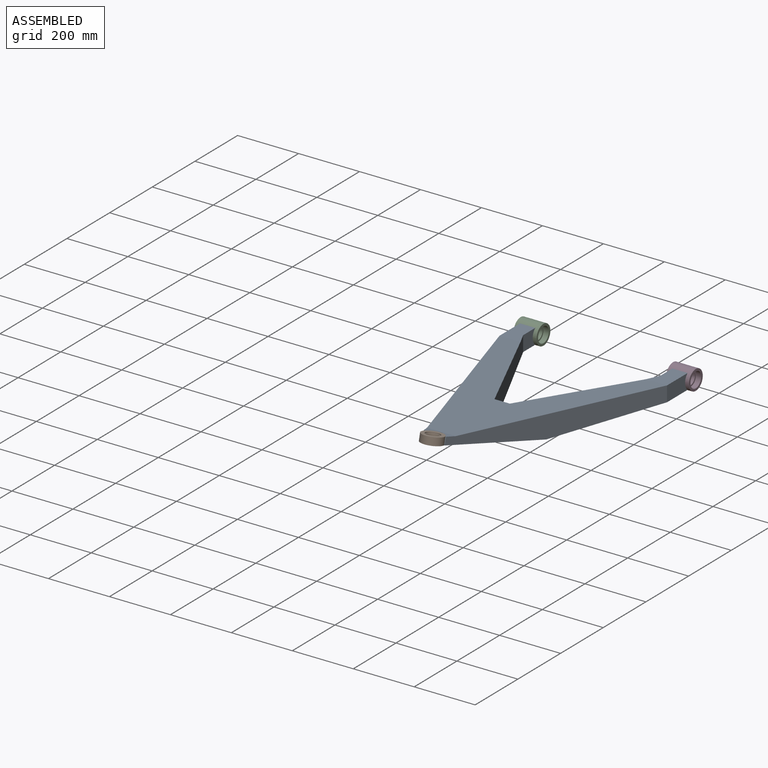
[diagram: assembled view]
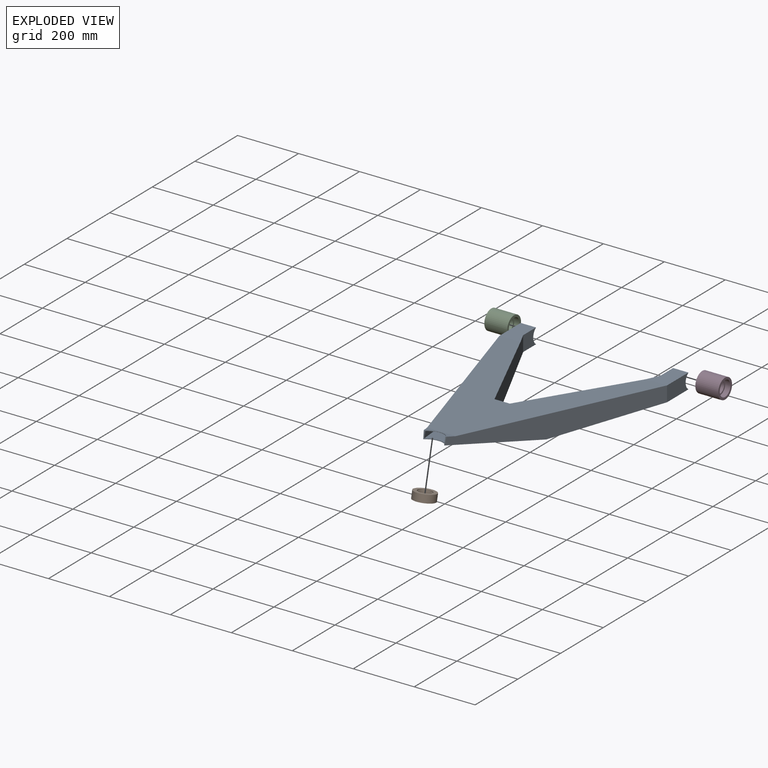
[diagram: exploded view]
GUIDED TOUR — MATED ASSEMBLY (Onshape document 5b496e9165261a41c8ff8666, AutoMate assembly 5b496e9165261a41c8ff8666_2adab7daae4539286cc4ed12_07d8897e8135ba86f213bf9e_default)

This assembly has 4 components, labeled P0..P3 below (a component is one placed occurrence of a part; the same part can appear more than once), held together by 3 mates. A mate is a constraint between two components; its type names the relative motion it leaves free:
  FASTENED — locks the two components together rigidly (no relative motion).
Axis/direction vectors are unit vectors and 'through' points are millimeter coordinates, both in the assembly's world frame.

MATES
  1. FASTENED "Fastened 3": P0 <-> P1, direction (0.000, 0.228, 0.974) through (-230.06, -615.00, -161.22) mm
  2. FASTENED "Fastened 2": P0 <-> P2, direction (1.000, 0.000, 0.000) through (-480.06, 208.88, -225.67) mm
  3. FASTENED "Fastened 1": P0 <-> P3, direction (1.000, 0.000, 0.000) through (19.94, 208.88, -225.67) mm

ASSEMBLY ORDER
  1. P3 — the base component [order verified]
  2. P2 [order verified]
  3. P0 [order verified]
  4. P1 [order verified]
Order-tag legend:
  [order verified] — this step's position reverses a verified removal order: the component was checked to insert without passing through the ones already placed.

Of the 4 components, 4 carry the full construction recipe — the FeatureScript program that regenerates the part's solid from scratch; the rest are supplied as boundary geometry only.
Each toured component is shown spotlighted twice — in the assembled view, then in the exploded view, where a leader line traces a displaced component back to its assembled socket (saturated green if recipe-attached, orange if geometry-only; every other component desaturated gray) — followed by its recipe or geometry summary and the mates that hold it.
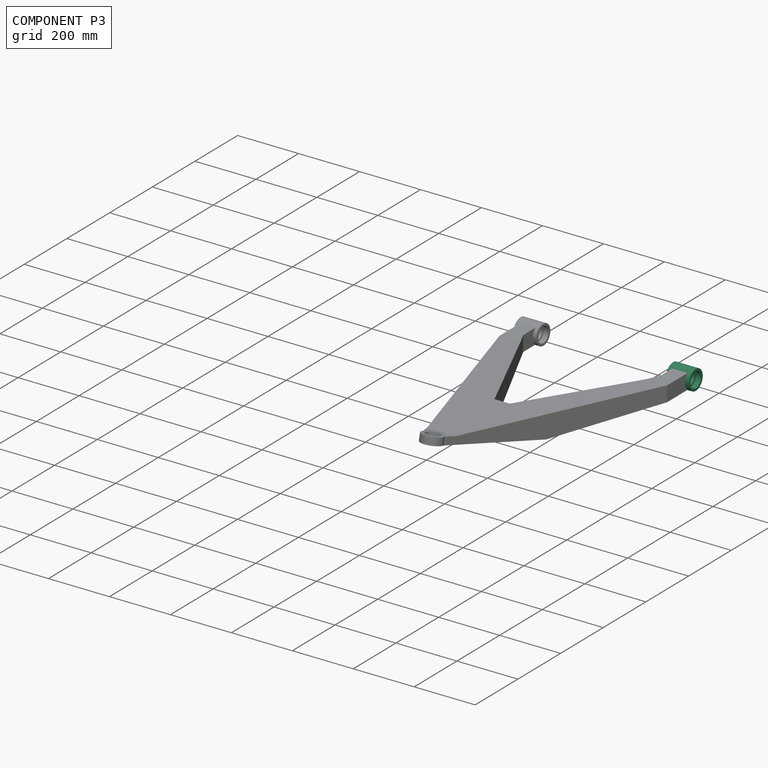
[diagram: component P3 — assembled]
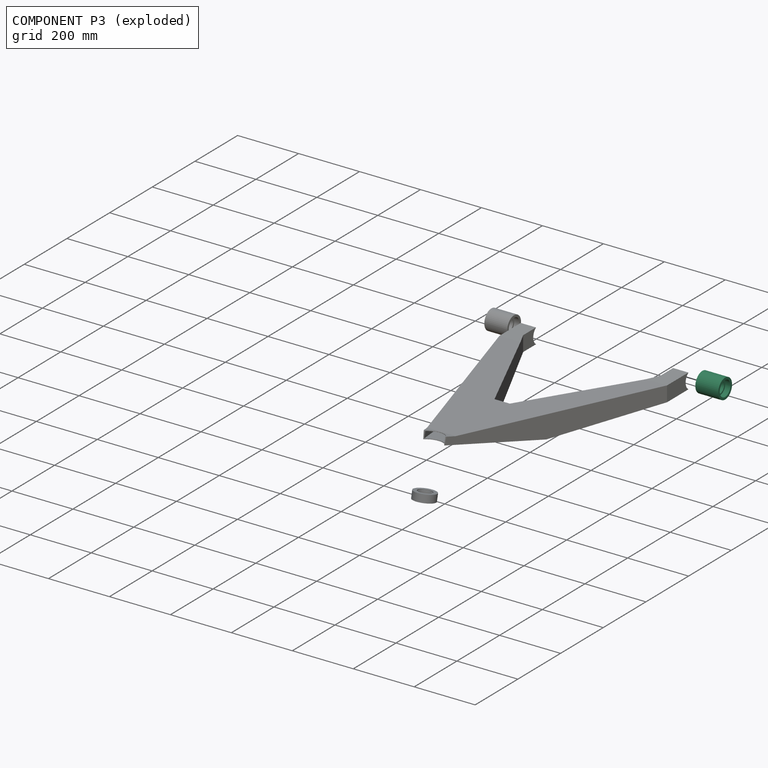
[diagram: component P3 — exploded]
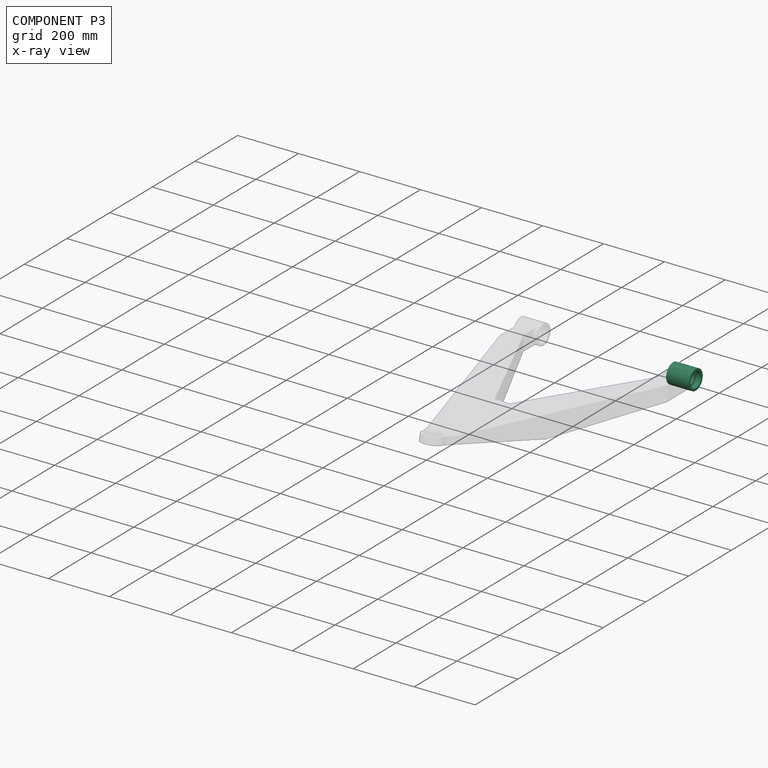
[diagram: component P3 — x-ray view]
COMPONENT P3 — same part as P2 (CADFS 00479923); its construction recipe is shown at P2.
Held by: FASTENED mate "Fastened 1" to P0.
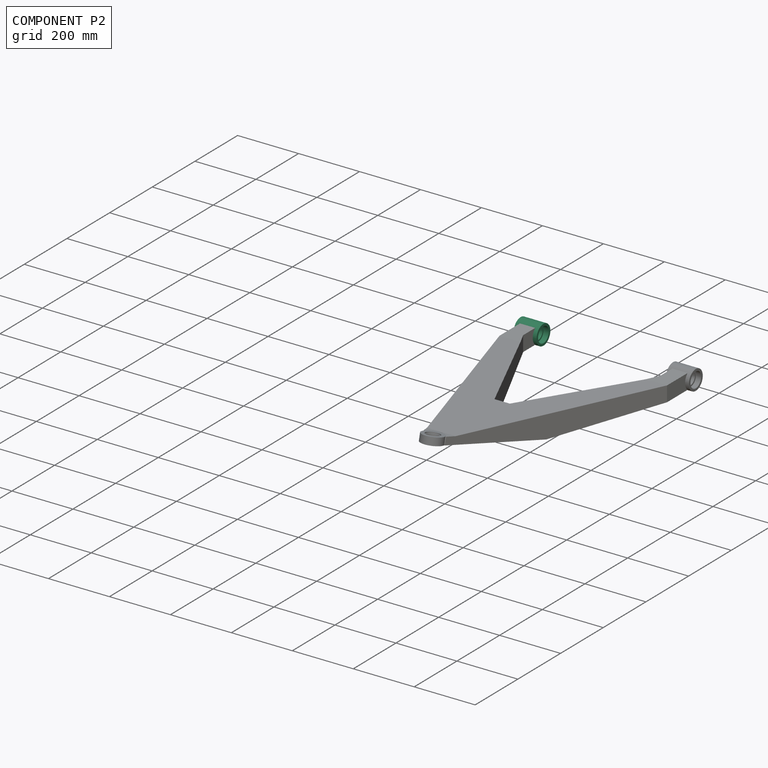
[diagram: component P2 — assembled]
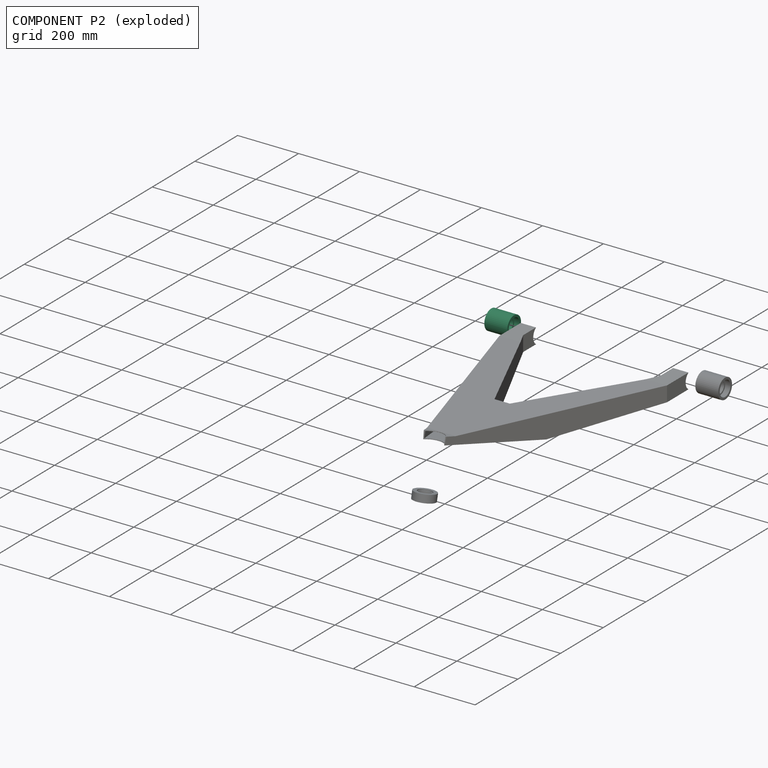
[diagram: component P2 — exploded]
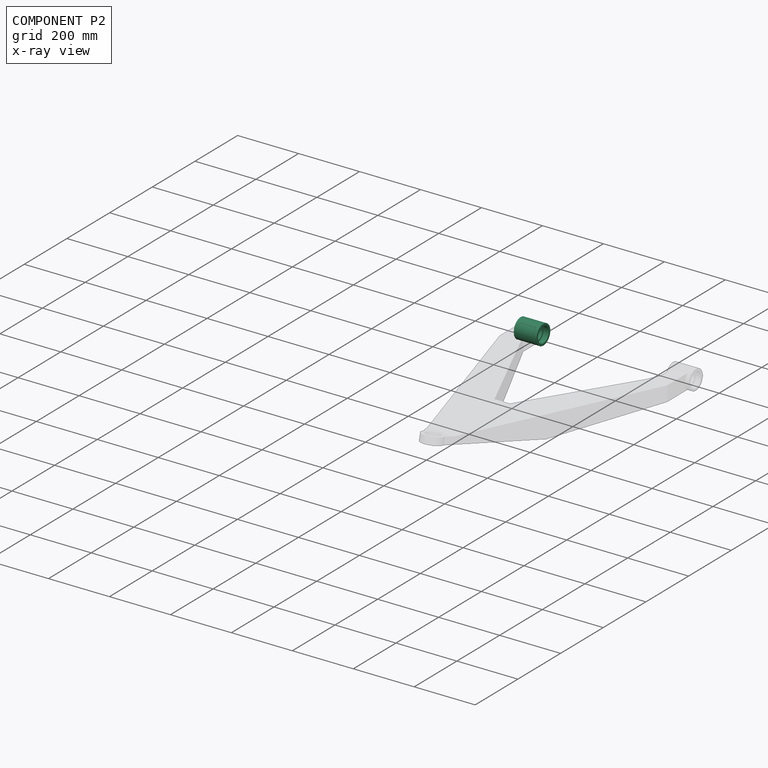
[diagram: component P2 — x-ray view]
COMPONENT P2 — recipe-attached (CADFS 00479923, mesh-verified: the recipe's output STEP matches this component's geometry to below the mesh-comparison resolution (tessellation chordal tolerance ~0.178 mm)).
Held by: FASTENED mate "Fastened 2" to P0.
Construction recipe (FeatureScript — the CAD program that rebuilds this solid; sketch coordinates are in the units given by the * unit suffixes, e.g. mm):

FeatureScript 1511;
import(path : "onshape/std/geometry.fs", version : "1511.0");
import(path : "onshape/std/common.fs", version : "1511.0");
const mm = millimeter;
const VERTEX = EntityType.VERTEX;
const EDGE = EntityType.EDGE;
const FACE = EntityType.FACE;
const BODY = EntityType.BODY;
function v(x, y){return vector(x, y);}
function OD(order){return orderDisambiguation(order);}
function OSD(set){return originalSetDisambiguation(set);}
function TD(topology){return topologyDisambiguation(topology);}
function TDD(query){return trueDependencyDisambiguation(query);}
function sQuery(a, b, c) {return sketchEntityQuery(a, b, c);}

annotation { "Feature Type Name" : "Feature", "Feature Type Description" : "" }
export const myFeature = defineFeature(function(context is Context, id is Id, definition is map)
    precondition{}
    {
        {
            var Q0;
            Q0=qCreatedBy(makeId("Right.planeOp"),FACE);
            var sketch = newSketch(context, id + "F0", { "sketchPlane" : qUnion([Q0])});
            skCircle(sketch, "E0", {"center": v(0, 0) * mm, "radius": 32.5 * mm});
            skCircle(sketch, "E1", {"center": v(0, 0) * mm, "radius": 20 * mm});
            skSolve(sketch);
        }
        {
            var Q0;
            Q0=makeQuery(id+"F0.imprint","IMPRINT",FACE,{"disambiguationData":[TD([[makeQuery(id+"F0.imprint","IMPRINT",EDGE,{"derivedFrom":sQuery(id+"F0.wireOp",EDGE,"E0")}),1.0]])]});
            extrude(context, id + "F1", {"entities" : qUnion([Q0]), "endBound" : BoundingType.SYMMETRIC, "depth" : 75 * mm});
        }
        {
            var Q0;
            Q0=makeQuery(id+"F1.opExtrude","CAP_FACE",FACE,{"disambiguationData":[OSD([sQuery(id+"F0.wireOp",EDGE,"E0"),sQuery(id+"F0.wireOp",EDGE,"E1")])],"isStart":false});
            var sketch = newSketch(context, id + "F2", { "sketchPlane" : qUnion([Q0])});
            skCircle(sketch, "E2.0", {"center": v(0, 0) * mm, "radius": 25 * mm});
            skSolve(sketch);
        }
        {
            var Q0;
            Q0=makeQuery(id+"F2.imprint","IMPRINT",FACE,{"disambiguationData":[TD([[makeQuery(id+"F2.imprint","IMPRINT",EDGE,{"derivedFrom":sQuery(id+"F2.wireOp",EDGE,"E2.0")}),1.0]])]});
            extrude(context, id + "F3", {"entities" : qUnion([Q0]), "operationType" : NewBodyOperationType.REMOVE, "oppositeDirection" : true, "depth" : 17 * mm});
        }
        {
            var Q0;
            Q0=makeQuery(id+"F1.opExtrude","CAP_FACE",FACE,{"disambiguationData":[OSD([sQuery(id+"F0.wireOp",EDGE,"E0"),sQuery(id+"F0.wireOp",EDGE,"E1")])],"isStart":true});
            var sketch = newSketch(context, id + "F4", { "sketchPlane" : qUnion([Q0])});
            skCircle(sketch, "E3.0", {"center": v(0, 0) * mm, "radius": 25 * mm});
            skSolve(sketch);
        }
        {
            var Q0;
            Q0=makeQuery(id+"F4.imprint","IMPRINT",FACE,{"disambiguationData":[TD([[makeQuery(id+"F4.imprint","IMPRINT",EDGE,{"derivedFrom":sQuery(id+"F4.wireOp",EDGE,"E3.0")}),1.0]])]});
            extrude(context, id + "F5", {"entities" : qUnion([Q0]), "operationType" : NewBodyOperationType.REMOVE, "oppositeDirection" : true, "depth" : 17 * mm});
        }
    });
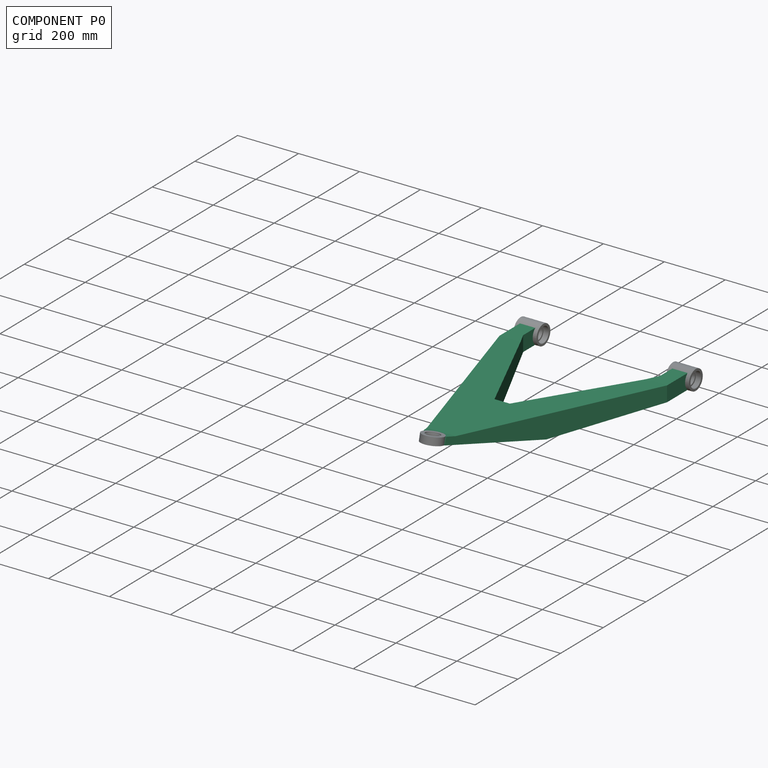
[diagram: component P0 — assembled]
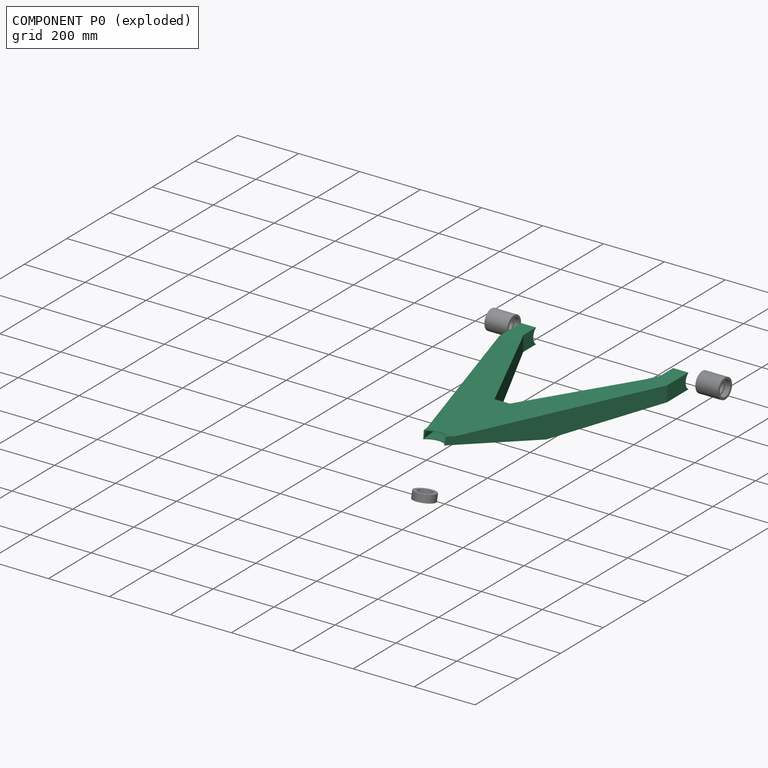
[diagram: component P0 — exploded]
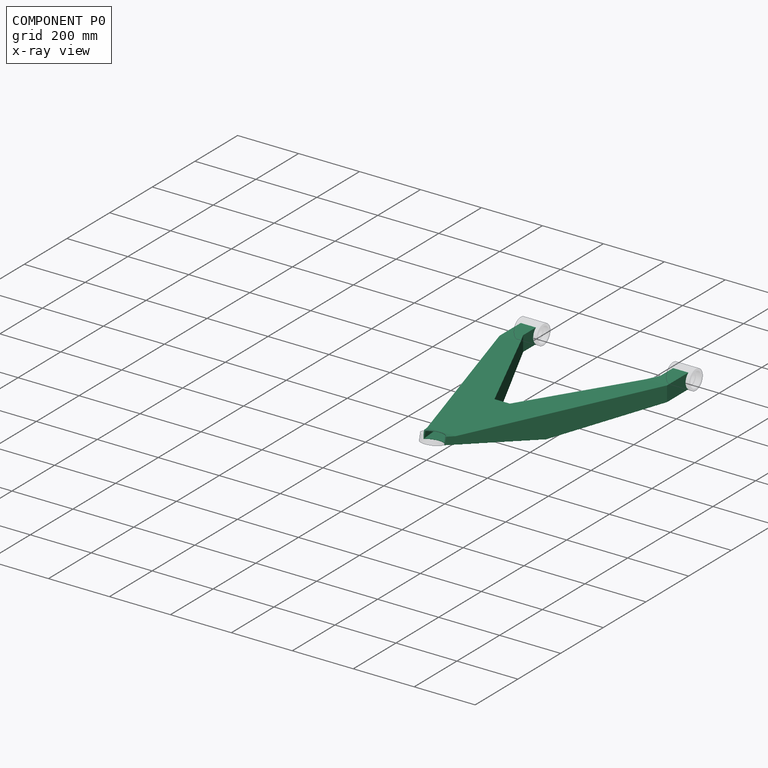
[diagram: component P0 — x-ray view]
COMPONENT P0 — recipe-attached (CADFS 00479922, mesh-verified: the recipe's output STEP matches this component's geometry to below the mesh-comparison resolution (tessellation chordal tolerance ~1.46 mm)).
Held by: FASTENED mate "Fastened 3" to P1; FASTENED mate "Fastened 2" to P2; FASTENED mate "Fastened 1" to P3.
Construction recipe (FeatureScript — the CAD program that rebuilds this solid; sketch coordinates are in the units given by the * unit suffixes, e.g. mm):

FeatureScript 1511;
import(path : "onshape/std/geometry.fs", version : "1511.0");
import(path : "onshape/std/common.fs", version : "1511.0");
const mm = millimeter;
const VERTEX = EntityType.VERTEX;
const EDGE = EntityType.EDGE;
const FACE = EntityType.FACE;
const BODY = EntityType.BODY;
function v(x, y){return vector(x, y);}
function OD(order){return orderDisambiguation(order);}
function OSD(set){return originalSetDisambiguation(set);}
function TD(topology){return topologyDisambiguation(topology);}
function TDD(query){return trueDependencyDisambiguation(query);}
function sQuery(a, b, c) {return sketchEntityQuery(a, b, c);}

annotation { "Feature Type Name" : "Feature", "Feature Type Description" : "" }
export const myFeature = defineFeature(function(context is Context, id is Id, definition is map)
    precondition{}
    {
        {
            var Q0;
            Q0=qCreatedBy(makeId("Top.planeOp"),FACE);
            var sketch = newSketch(context, id + "F0", { "sketchPlane" : qUnion([Q0])});
            skLineSegment(sketch, "E0.bottom", {"start": v(-275, 576.85) * mm, "end": v(-225, 576.85) * mm});
            skLineSegment(sketch, "E0.left", {"start": v(-275, 576.85) * mm, "end": v(-275, 476.85) * mm});
            skLineSegment(sketch, "E0.right", {"start": v(275, 576.85) * mm, "end": v(275, 476.85) * mm});
            skLineSegment(sketch, "E1", {"start": v(-225, 576.85) * mm, "end": v(-225, 516.85) * mm});
            skLineSegment(sketch, "E2", {"start": v(-225, 516.85) * mm, "end": v(-25, 96.85) * mm});
            skLineSegment(sketch, "E3", {"start": v(-25, 96.85) * mm, "end": v(25, 96.85) * mm});
            skLineSegment(sketch, "E4", {"start": v(25, 96.85) * mm, "end": v(225, 516.85) * mm});
            skLineSegment(sketch, "E5", {"start": v(225, 516.85) * mm, "end": v(225, 576.85) * mm});
            skLineSegment(sketch, "E6", {"start": v(275, 476.85) * mm, "end": v(35, -223.15) * mm});
            skLineSegment(sketch, "E7", {"start": v(-35, -223.15) * mm, "end": v(-275, 476.85) * mm});
            skLineSegment(sketch, "E8.trimOffspring", {"start": v(225, 576.85) * mm, "end": v(275, 576.85) * mm});
            skLineSegment(sketch, "E9", {"start": v(-35, -223.15) * mm, "end": v(35, -223.15) * mm});
            skPoint(sketch, "E10", {"position": v(0, -223.15) * mm});
            skPoint(sketch, "E11", {"position": v(0, 96.85) * mm});
            skSolve(sketch);
        }
        {
            var Q0;
            Q0=makeQuery(id+"F0.imprint","IMPRINT",FACE,{"disambiguationData":[TD([[makeQuery(id+"F0.imprint","IMPRINT",EDGE,{"derivedFrom":sQuery(id+"F0.wireOp",EDGE,"E0.bottom")}),-1.0]])]});
            extrude(context, id + "F1", {"entities" : qUnion([Q0]), "oppositeDirection" : true, "depth" : 150 * mm});
        }
        {
            var Q0;
            Q0=makeQuery(id+"F1.opExtrude","SWEPT_FACE",FACE,{"disambiguationData":[OSD([sQuery(id+"F0.wireOp",EDGE,"E0.right")])]});
            var sketch = newSketch(context, id + "F2", { "sketchPlane" : qUnion([Q0])});
            skLineSegment(sketch, "E12.0.0", {"start": v(476.85, 0) * mm, "end": v(-223.15, 0) * mm});
            skLineSegment(sketch, "E12.0.1", {"start": v(-223.15, 0) * mm, "end": v(-223.15, -150) * mm});
            skLineSegment(sketch, "E12.0.2", {"start": v(-223.15, -150) * mm, "end": v(476.85, -150) * mm});
            skLineSegment(sketch, "E12.0.3", {"start": v(476.85, -150) * mm, "end": v(476.85, 0) * mm});
            skLineSegment(sketch, "E13.0.0", {"start": v(576.85, 0) * mm, "end": v(476.85, 0) * mm});
            skLineSegment(sketch, "E13.0.1", {"start": v(476.85, 0) * mm, "end": v(476.85, -150) * mm});
            skLineSegment(sketch, "E13.0.2", {"start": v(476.85, -150) * mm, "end": v(576.85, -150) * mm});
            skLineSegment(sketch, "E13.0.3", {"start": v(576.85, -150) * mm, "end": v(576.85, 0) * mm});
            skLineSegment(sketch, "E14", {"start": v(576.85, -150) * mm, "end": v(96.85, -150) * mm});
            skLineSegment(sketch, "E15", {"start": v(96.85, -150) * mm, "end": v(-223.15, -75) * mm});
            skLineSegment(sketch, "E16", {"start": v(-223.15, -75) * mm, "end": v(-217.45, -50.66) * mm});
            skLineSegment(sketch, "E17", {"start": v(-217.45, -50.66) * mm, "end": v(-188.24, -57.5) * mm});
            skLineSegment(sketch, "E18", {"start": v(-188.24, -57.5) * mm, "end": v(476.85, -100) * mm});
            skLineSegment(sketch, "E19", {"start": v(476.85, -100) * mm, "end": v(576.85, -100) * mm});
            skSolve(sketch);
        }
        {
            var Q0;
            {var subQ3=sQuery(id+"F2.wireOp",EDGE,"E15");Q0=makeQuery(id+"F2.imprint","IMPRINT",FACE,{"disambiguationData":[TD([[makeQuery(id+"F2.imprint","IMPRINT",EDGE,{"derivedFrom":subQ3}),1.0]])]});}
            var Q1;
            {var subQ2=sQuery(id+"F2.wireOp",EDGE,"E12.0.0");Q1=makeQuery(id+"F2.imprint","IMPRINT",FACE,{"disambiguationData":[TD([[makeQuery(id+"F2.imprint","IMPRINT",EDGE,{"derivedFrom":subQ2}),1.0]])]});}
            var Q2;
            {var subQ0=sQuery(id+"F2.wireOp",EDGE,"E13.0.0");Q2=makeQuery(id+"F2.imprint","IMPRINT",FACE,{"disambiguationData":[TD([[makeQuery(id+"F2.imprint","IMPRINT",EDGE,{"derivedFrom":subQ0}),1.0]])]});}
            extrude(context, id + "F3", {"entities" : qUnion([Q0, Q1, Q2]), "operationType" : NewBodyOperationType.REMOVE, "endBound" : BoundingType.THROUGH_ALL, "oppositeDirection" : true, "depth" : 25 * mm});
        }
        {
            var Q0;
            Q0=makeQuery(id+"F3.boolean.opBoolean","COPY",FACE,{"derivedFrom":makeQuery(id+"F3.opExtrude","SWEPT_FACE",FACE,{"disambiguationData":[OSD([sQuery(id+"F2.wireOp",EDGE,"E17")])]})});
            var sketch = newSketch(context, id + "F4", { "sketchPlane" : qUnion([Q0])});
            skLineSegment(sketch, "E20.0.0", {"start": v(46.97, -170.15) * mm, "end": v(-46.97, -170.15) * mm});
            skLineSegment(sketch, "E20.0.1", {"start": v(-46.97, -170.15) * mm, "end": v(-36.96, -200.15) * mm});
            skLineSegment(sketch, "E20.0.2", {"start": v(-36.96, -200.15) * mm, "end": v(36.96, -200.15) * mm});
            skLineSegment(sketch, "E20.0.3", {"start": v(36.96, -200.15) * mm, "end": v(46.97, -170.15) * mm});
            skLineSegment(sketch, "E21", {"start": v(0, -200.15) * mm, "end": v(0, -210.15) * mm});
            skPoint(sketch, "E21.endSnap0", {"position": v(0, -200.15) * mm});
            skCircle(sketch, "E22", {"center": v(0, -210.15) * mm, "radius": 35 * mm});
            skSolve(sketch);
        }
        {
            var Q0;
            {var subQ0=sQuery(id+"F4.wireOp",EDGE,"E20.0.2");var subQ1=makeQuery(id+"F4.imprint","IMPRINT",VERTEX,{"derivedFrom":subQ0});Q0=makeQuery(id+"F4.imprint","IMPRINT",FACE,{"disambiguationData":[TD([[makeQuery(id+"F4.imprint","IMPRINT",EDGE,{"disambiguationData":[TD([[subQ1,1.0]])],"derivedFrom":subQ0}),1.0]])]});}
            extrude(context, id + "F5", {"entities" : qUnion([Q0]), "operationType" : NewBodyOperationType.REMOVE, "endBound" : BoundingType.THROUGH_ALL, "oppositeDirection" : true, "depth" : 25 * mm});
        }
        {
            var Q0;
            Q0=makeQuery(id+"F1.opExtrude","SWEPT_FACE",FACE,{"disambiguationData":[OSD([sQuery(id+"F0.wireOp",EDGE,"E0.right")])]});
            var sketch = newSketch(context, id + "F6", { "sketchPlane" : qUnion([Q0])});
            skLineSegment(sketch, "E23.0.0", {"start": v(576.85, -100) * mm, "end": v(476.85, -100) * mm});
            skLineSegment(sketch, "E23.0.1", {"start": v(476.85, -100) * mm, "end": v(476.85, -150) * mm});
            skLineSegment(sketch, "E23.0.2", {"start": v(476.85, -150) * mm, "end": v(576.85, -150) * mm});
            skLineSegment(sketch, "E23.0.3", {"start": v(576.85, -150) * mm, "end": v(576.85, -100) * mm});
            skLineSegment(sketch, "E24", {"start": v(576.85, -125) * mm, "end": v(593.85, -125) * mm});
            skCircle(sketch, "E25", {"center": v(593.85, -125) * mm, "radius": 30 * mm});
            skSolve(sketch);
        }
        {
            var Q0;
            {var subQ0=sQuery(id+"F6.wireOp",EDGE,"E23.0.3");var subQ1=makeQuery(id+"F6.imprint","IMPRINT",VERTEX,{"derivedFrom":subQ0});Q0=makeQuery(id+"F6.imprint","IMPRINT",FACE,{"disambiguationData":[TD([[makeQuery(id+"F6.imprint","IMPRINT",EDGE,{"disambiguationData":[TD([[subQ1,1.0]])],"derivedFrom":subQ0}),1.0]])]});}
            extrude(context, id + "F7", {"entities" : qUnion([Q0]), "operationType" : NewBodyOperationType.REMOVE, "endBound" : BoundingType.THROUGH_ALL, "oppositeDirection" : true, "depth" : 25 * mm});
        }
        {
            var Q0;
            Q0=makeQuery(id+"F7.boolean.opBoolean","COPY",FACE,{"disambiguationData":[TD([makeQuery(id+"F1.opExtrude","SWEPT_FACE",FACE,{"disambiguationData":[OSD([sQuery(id+"F0.wireOp",EDGE,"E0.right")])]})])],"derivedFrom":makeQuery(id+"F7.opExtrude","SWEPT_FACE",FACE,{"disambiguationData":[OSD([sQuery(id+"F6.wireOp",EDGE,"E25")])]})});
            var Q1;
            Q1=makeQuery(id+"F7.boolean.opBoolean","COPY",FACE,{"disambiguationData":[TD([makeQuery(id+"F1.opExtrude","SWEPT_FACE",FACE,{"disambiguationData":[OSD([sQuery(id+"F0.wireOp",EDGE,"E0.bottom")])]})])],"derivedFrom":makeQuery(id+"F7.opExtrude","SWEPT_FACE",FACE,{"disambiguationData":[OSD([sQuery(id+"F6.wireOp",EDGE,"E25")])]})});
            var Q2;
            Q2=makeQuery(id+"F5.boolean.opBoolean","COPY",FACE,{"derivedFrom":makeQuery(id+"F5.opExtrude","SWEPT_FACE",FACE,{"disambiguationData":[OSD([sQuery(id+"F4.wireOp",EDGE,"E22")])]})});
            shell(context, id + "F8", {"entities" : qUnion([Q0, Q1, Q2]), "thickness" : 2 * mm});
        }
    });
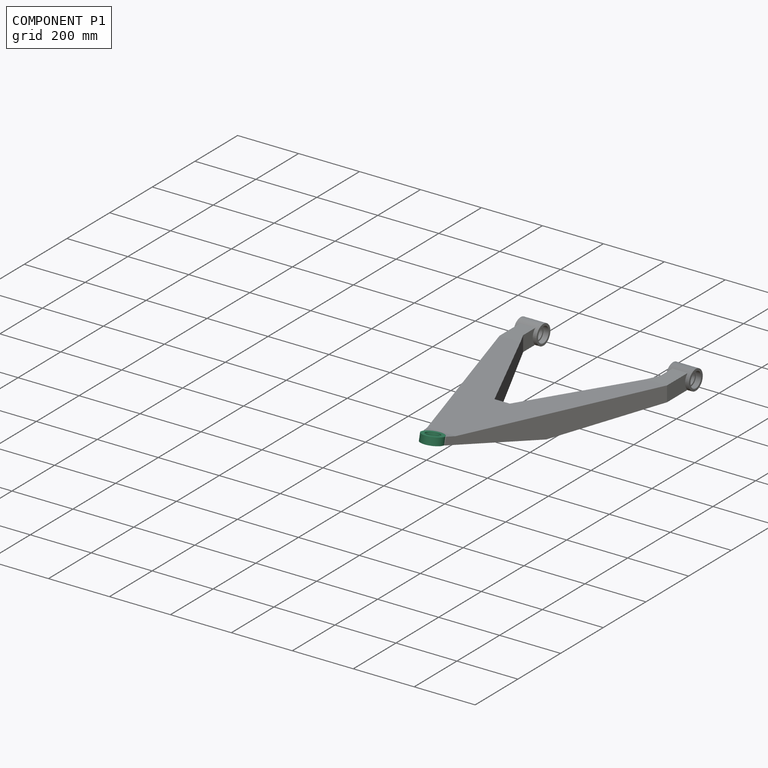
[diagram: component P1 — assembled]
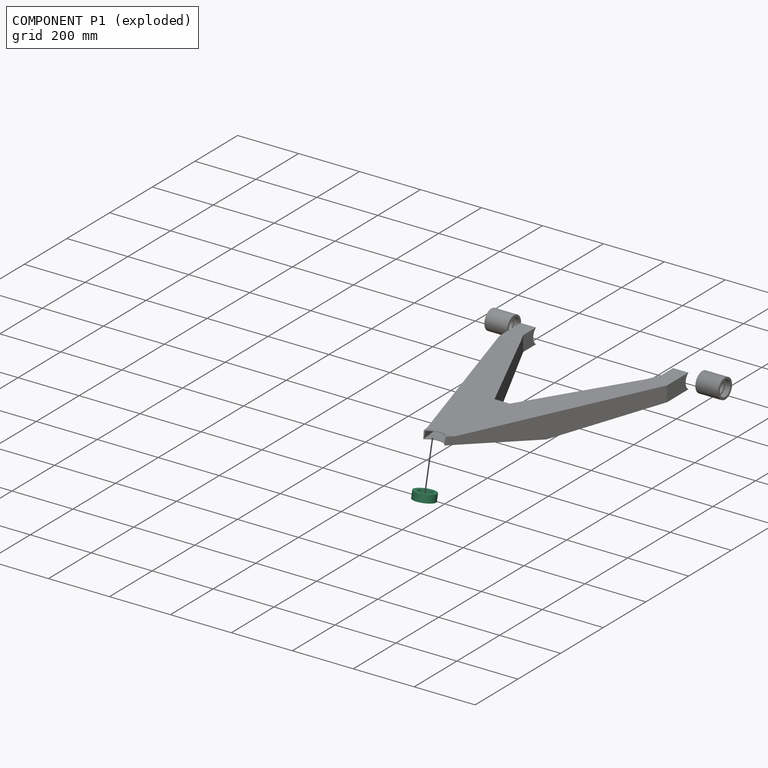
[diagram: component P1 — exploded]
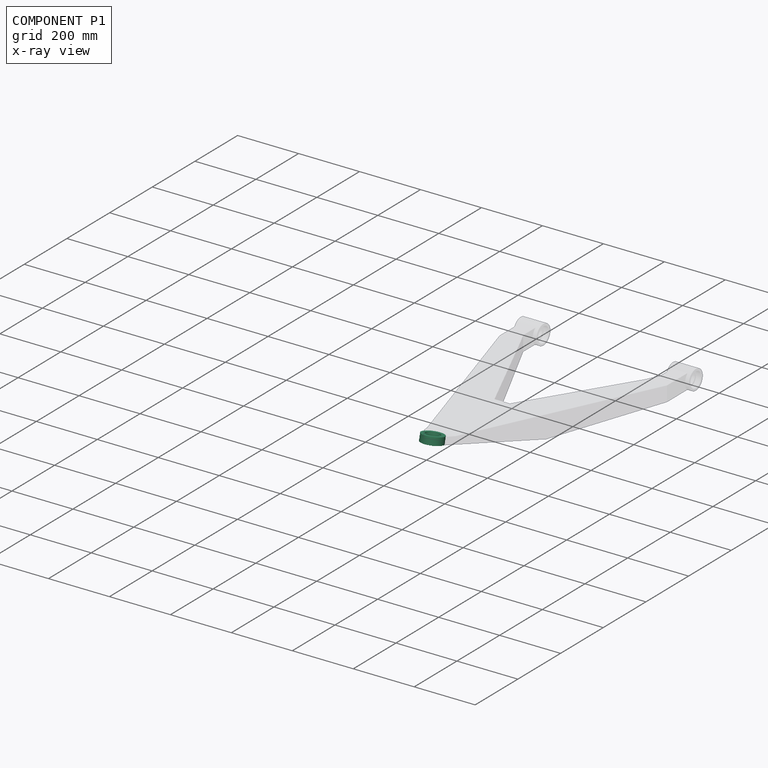
[diagram: component P1 — x-ray view]
COMPONENT P1 — recipe-attached (CADFS 00479924, mesh-verified: the recipe's output STEP matches this component's geometry to below the mesh-comparison resolution (tessellation chordal tolerance ~0.153 mm)).
Held by: FASTENED mate "Fastened 3" to P0.
Construction recipe (FeatureScript — the CAD program that rebuilds this solid; sketch coordinates are in the units given by the * unit suffixes, e.g. mm):

FeatureScript 1511;
import(path : "onshape/std/geometry.fs", version : "1511.0");
import(path : "onshape/std/common.fs", version : "1511.0");
const mm = millimeter;
const VERTEX = EntityType.VERTEX;
const EDGE = EntityType.EDGE;
const FACE = EntityType.FACE;
const BODY = EntityType.BODY;
function v(x, y){return vector(x, y);}
function OD(order){return orderDisambiguation(order);}
function OSD(set){return originalSetDisambiguation(set);}
function TD(topology){return topologyDisambiguation(topology);}
function TDD(query){return trueDependencyDisambiguation(query);}
function sQuery(a, b, c) {return sketchEntityQuery(a, b, c);}

annotation { "Feature Type Name" : "Feature", "Feature Type Description" : "" }
export const myFeature = defineFeature(function(context is Context, id is Id, definition is map)
    precondition{}
    {
        {
            var Q0;
            Q0=qCreatedBy(makeId("Front.planeOp"),FACE);
            var sketch = newSketch(context, id + "F0", { "sketchPlane" : qUnion([Q0])});
            skLineSegment(sketch, "E0", {"start": v(0, 0) * mm, "end": v(0, 24.5) * mm});
            skLineSegment(sketch, "E1", {"start": v(0, 24.5) * mm, "end": v(12.5, 24.5) * mm});
            skLineSegment(sketch, "E2", {"start": v(12.5, 24.5) * mm, "end": v(12.5, 21.5) * mm});
            skLineSegment(sketch, "E3", {"start": v(12.5, 21.5) * mm, "end": v(9.5, 21.5) * mm});
            skLineSegment(sketch, "E4", {"start": v(9.5, 21.5) * mm, "end": v(9.5, 19.5) * mm});
            skLineSegment(sketch, "E5", {"start": v(9.5, 19.5) * mm, "end": v(12.5, 19.5) * mm});
            skLineSegment(sketch, "E6", {"start": v(12.5, 19.5) * mm, "end": v(12.5, 3) * mm});
            skLineSegment(sketch, "E7", {"start": v(12.5, 3) * mm, "end": v(16.5, 3) * mm});
            skLineSegment(sketch, "E8", {"start": v(16.5, 3) * mm, "end": v(16.5, 0) * mm});
            skLineSegment(sketch, "E9", {"start": v(16.5, 0) * mm, "end": v(0, 0) * mm});
            skLineSegment(sketch, "E10", {"start": v(35, 24.5) * mm, "end": v(35, 0) * mm});
            skSolve(sketch);
        }
        {
            var Q0;
            Q0=makeQuery(id+"F0.imprint","IMPRINT",FACE,{"disambiguationData":[TD([[makeQuery(id+"F0.imprint","IMPRINT",EDGE,{"derivedFrom":sQuery(id+"F0.wireOp",EDGE,"E0")}),-1.0]])]});
            var Q1;
            Q1=sQuery(id+"F0.wireOp",EDGE,"E10");
            revolve(context, id + "F1", {"entities" : qUnion([Q0]), "axis" : qUnion([Q1]), "revolveType" : RevolveType.FULL});
        }
    });
PROVENANCE & LICENSES
Assembly (occurrences, transforms, mates, per-part STEP geometry): AutoMate dataset, Zenodo record 7776208, CC0.
Construction recipes: CADFS (HuggingFace VladPyatov/CADFS, CC-BY-4.0, layered over the ABC dataset), FeatureScript reconstruction programs keyed by ABC model id.
Join: ABC meta listings map ABC model id -> Onshape documentId; within a shared document, parts are matched by geometric signature (bounding-box dims + volume at 0.1% relative tolerance, exact B-rep face/solid counts).
Verification: 4 of this assembly's 4 components carry a recipe attachment, and every attachment is mesh-verified: the CADFS STEP and the AutoMate member STEP were compared as meshes in their shared local frame (symmetric sampled-point-to-mesh distance); worst across the 4 attachments: below the mesh-comparison resolution (tessellation chordal tolerance ~1.46 mm) on a 976 mm part.
Renders: orthographic iso camera (az 35 / el 25); the floor grid conveys scale (grid pitch printed in each image; no ruler). In the exploded view each component is displaced by its stored offset vector: the offsets alone carry the explosion direction (mate normal/axis signs are not orientation cues and do not encode it), and separation distances are assigned per mate-chain, not proportionally to assembly-order depth.
